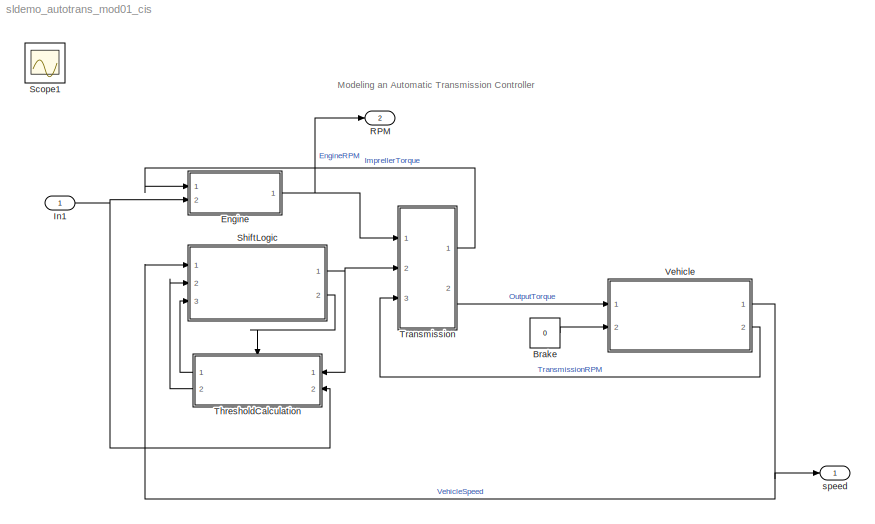
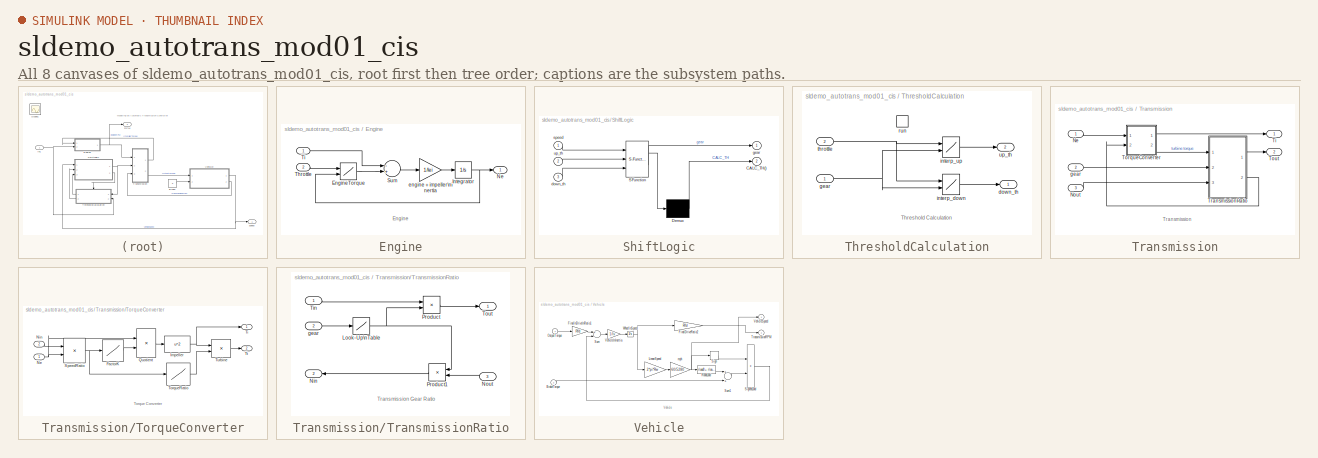
[diagram: thumbnail index - all 8 canvases of the model, root first then tree order]
MODEL sldemo_autotrans_mod01_cis
KIND model
WORKSPACE source: MATLAB code (in-file)
WORKSPACE code: load sldemo_autotrans_data; %load initial conditions and other necessary data
BLOCK [Constant] Brake
  SID = 83
  Value = 0
BLOCK [SubSystem] Engine
  Ports = [2, 1]
  RequestExecContextInheritance = off
  SID = 1
BLOCK [Lookup2D] Engine/EngineTorque
  ColumnIndex = nevec
  RowIndex = thvec
  SID = 4
  SaturateOnIntegerOverflow = off
  Table = emap
BLOCK [Integrator] Engine/Integrator
  InitialCondition = 1000
  LimitOutput = on
  LowerSaturationLimit = 600
  Ports = [1, 1]
  SID = 5
  UpperSaturationLimit = 6000
  ZeroCross = off
BLOCK [Outport] Engine/Ne
  IconDisplay = Port number
  InitialOutput = 0
  SID = 8
BLOCK [Sum] Engine/Sum
  Inputs = -+
  Ports = [2, 1]
  SID = 6
BLOCK [Inport] Engine/Throttle
  IconDisplay = Port number
  Port = 2
  SID = 3
BLOCK [Inport] Engine/Ti
  IconDisplay = Port number
  SID = 2
BLOCK [Gain] Engine/engine + impeller\ninertia
  Gain = 1/Iei
  SID = 7
BLOCK [Inport] In1
  IconDisplay = Port number
  SID = 84
BLOCK [Outport] RPM
  IconDisplay = Port number
  Port = 2
  SID = 79
BLOCK [Scope] Scope1
  Floating = off
  IOType = viewer
  MaxDataPoints = 7500
  NumInputPorts = 1
  Ports = []
  SID = 67
  SampleTime = 0
  TimeRange = 30
  YMax = 5000
  YMin = 1000
BLOCK [SubSystem] ShiftLogic
  ErrorFcn = Stateflow.Translate.translate
  PermitHierarchicalResolution = ExplicitOnly
  Ports = [3, 2]
  RequestExecContextInheritance = off
  SFBlockType = Chart
  SID = 16
  TreatAsAtomicUnit = on
BLOCK [Demux] ShiftLogic/ Demux 
  Outputs = 1
  Ports = [1, 1]
  SID = 16::19
BLOCK [S-Function] ShiftLogic/ SFunction 
  EnableBusSupport = on
  FunctionName = sf_sfun
  Parameters = TWAIT
  PortCounts = [3 2]
  Ports = [3, 2]
  SID = 16::18
  Tag = Stateflow S-Function sldemo_autotrans_mod01_cis 1
BLOCK [Outport] ShiftLogic/CALC_TH()
  IconDisplay = Port number
  Port = 2
  SID = 16::7
BLOCK [Inport] ShiftLogic/down_th
  IconDisplay = Port number
  Port = 3
  SID = 16::3
BLOCK [Outport] ShiftLogic/gear
  IconDisplay = Port number
  SID = 16::6
BLOCK [Inport] ShiftLogic/speed
  IconDisplay = Port number
  SID = 16::1
BLOCK [Inport] ShiftLogic/up_th
  IconDisplay = Port number
  Port = 2
  SID = 16::2
BLOCK [SubSystem] ThresholdCalculation
  Ports = [2, 2, 0, 1]
  RequestExecContextInheritance = off
  SID = 17
  TreatAsAtomicUnit = on
BLOCK [Outport] ThresholdCalculation/down_th
  IconDisplay = Port number
  SID = 23
BLOCK [Inport] ThresholdCalculation/gear
  IconDisplay = Port number
  SID = 18
BLOCK [Lookup2D] ThresholdCalculation/interp_down
  ColumnIndex = [1:4]
  InputSameDT = off
  LockScale = on
  OutDataTypeStr = double
  RowIndex = downth
  SID = 21
  SaturateOnIntegerOverflow = off
  Table = downtab
BLOCK [Lookup2D] ThresholdCalculation/interp_up
  ColumnIndex = [1:4]
  InputSameDT = off
  LockScale = on
  OutDataTypeStr = double
  RowIndex = upth
  SID = 22
  SaturateOnIntegerOverflow = off
  Table = uptab
BLOCK [TriggerPort] ThresholdCalculation/run
  Ports = []
  SID = 20
  TriggerType = function-call
  ZeroCross = off
BLOCK [Inport] ThresholdCalculation/throttle
  IconDisplay = Port number
  Port = 2
  SID = 19
BLOCK [Outport] ThresholdCalculation/up_th
  IconDisplay = Port number
  Port = 2
  SID = 24
BLOCK [SubSystem] Transmission
  Ports = [3, 2]
  RequestExecContextInheritance = off
  SID = 25
BLOCK [Inport] Transmission/Ne
  IconDisplay = Port number
  SID = 26
BLOCK [Inport] Transmission/Nout
  IconDisplay = Port number
  Port = 3
  SID = 28
BLOCK [Outport] Transmission/Ti
  IconDisplay = Port number
  InitialOutput = 0
  SID = 49
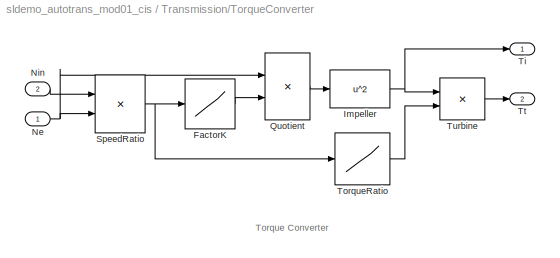
BLOCK [SubSystem] Transmission/TorqueConverter
  Ports = [2, 2]
  RequestExecContextInheritance = off
  SID = 29
  ShowPortLabels = none
BLOCK [Lookup] Transmission/TorqueConverter/FactorK
  InputValues = speedratio
  SID = 32
  Table = Kfactor
BLOCK [Fcn] Transmission/TorqueConverter/Impeller
  Expr = u^2
  SID = 33
BLOCK [Inport] Transmission/TorqueConverter/Ne
  IconDisplay = Port number
  SID = 30
BLOCK [Inport] Transmission/TorqueConverter/Nin
  IconDisplay = Port number
  Port = 2
  SID = 31
BLOCK [Product] Transmission/TorqueConverter/Quotient
  Inputs = */
  Ports = [2, 1]
  RndMeth = Floor
  SID = 34
BLOCK [Product] Transmission/TorqueConverter/SpeedRatio
  Inputs = */
  Ports = [2, 1]
  RndMeth = Floor
  SID = 35
BLOCK [Outport] Transmission/TorqueConverter/Ti
  IconDisplay = Port number
  InitialOutput = 0
  SID = 38
BLOCK [Lookup] Transmission/TorqueConverter/TorqueRatio
  InputValues = speedratio
  SID = 36
  Table = Torkratio
BLOCK [Outport] Transmission/TorqueConverter/Tt
  IconDisplay = Port number
  InitialOutput = 0
  Port = 2
  SID = 39
BLOCK [Product] Transmission/TorqueConverter/Turbine
  Ports = [2, 1]
  RndMeth = Floor
  SID = 37
BLOCK [Outport] Transmission/Tout
  IconDisplay = Port number
  InitialOutput = 0
  Port = 2
  SID = 50
BLOCK [SubSystem] Transmission/TransmissionRatio
  Ports = [3, 2]
  RequestExecContextInheritance = off
  SID = 40
BLOCK [Lookup] Transmission/TransmissionRatio/Look-Up\nTable
  InputValues = [1 2 3 4]
  LockScale = on
  OutDataTypeStr = double
  SID = 44
  Table = [2.393 1.450 1.000 0.677]
BLOCK [Outport] Transmission/TransmissionRatio/Nin
  IconDisplay = Port number
  InitialOutput = 0
  Port = 2
  SID = 48
BLOCK [Inport] Transmission/TransmissionRatio/Nout
  IconDisplay = Port number
  Port = 3
  SID = 43
BLOCK [Product] Transmission/TransmissionRatio/Product
  Ports = [2, 1]
  RndMeth = Floor
  SID = 45
BLOCK [Product] Transmission/TransmissionRatio/Product1
  Ports = [2, 1]
  RndMeth = Floor
  SID = 46
BLOCK [Inport] Transmission/TransmissionRatio/Tin
  IconDisplay = Port number
  SID = 41
BLOCK [Outport] Transmission/TransmissionRatio/Tout
  IconDisplay = Port number
  InitialOutput = 0
  SID = 47
BLOCK [Inport] Transmission/TransmissionRatio/gear
  IconDisplay = Port number
  Port = 2
  SID = 42
BLOCK [Inport] Transmission/gear
  IconDisplay = Port number
  Port = 2
  SID = 27
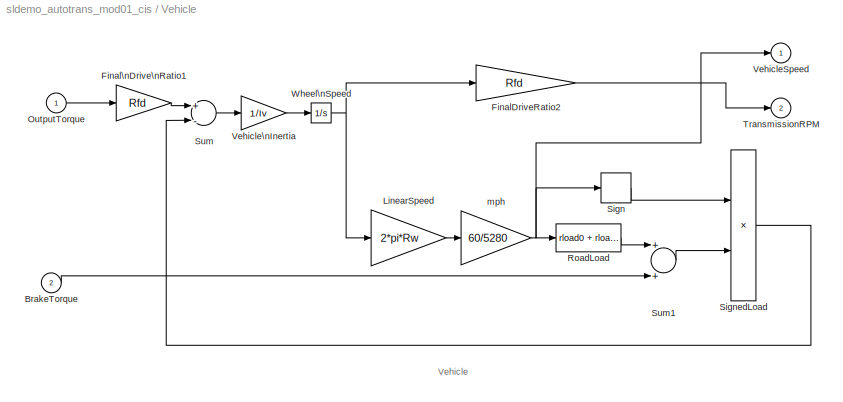
BLOCK [SubSystem] Vehicle
  Ports = [2, 2]
  RequestExecContextInheritance = off
  SID = 51
  ShowPortLabels = none
BLOCK [Inport] Vehicle/BrakeTorque
  IconDisplay = Port number
  Port = 2
  SID = 53
BLOCK [Gain] Vehicle/FinalDriveRatio2
  Gain = Rfd
  SID = 55
BLOCK [Gain] Vehicle/Final\nDrive\nRatio1
  Gain = Rfd
  SID = 54
BLOCK [Gain] Vehicle/LinearSpeed
  Gain = 2*pi*Rw
  SID = 56
BLOCK [Inport] Vehicle/OutputTorque
  IconDisplay = Port number
  SID = 52
BLOCK [Fcn] Vehicle/RoadLoad
  Expr = rload0 + rload2*u^2
  SID = 57
BLOCK [Signum] Vehicle/Sign
  SID = 58
BLOCK [Product] Vehicle/SignedLoad
  Ports = [2, 1]
  RndMeth = Floor
  SID = 59
BLOCK [Sum] Vehicle/Sum
  Inputs = +-
  Ports = [2, 1]
  SID = 60
BLOCK [Sum] Vehicle/Sum1
  Ports = [2, 1]
  SID = 61
BLOCK [Outport] Vehicle/TransmissionRPM
  IconDisplay = Port number
  InitialOutput = 0
  Port = 2
  SID = 66
BLOCK [Outport] Vehicle/VehicleSpeed
  IconDisplay = Port number
  InitialOutput = 0
  SID = 65
BLOCK [Gain] Vehicle/Vehicle\nInertia
  Gain = 1/Iv
  SID = 62
BLOCK [Integrator] Vehicle/Wheel\nSpeed
  InitialCondition = N20/Rfd
  Ports = [1, 1]
  SID = 63
  ZeroCross = off
BLOCK [Gain] Vehicle/mph
  Gain = 60/5280
  SID = 64
BLOCK [Outport] speed
  IconDisplay = Port number
  SID = 80
ANNOTATION (root): Modeling an Automatic Transmission Controller
ANNOTATION Engine: Engine
ANNOTATION ThresholdCalculation: Threshold Calculation
ANNOTATION Transmission: Transmission
ANNOTATION Transmission/TorqueConverter: Torque Converter
ANNOTATION Transmission/TransmissionRatio: Transmission Gear Ratio
ANNOTATION Vehicle: Vehicle
LINE Brake:1 -> Vehicle:2
LINE Engine/EngineTorque:1 -> Engine/Sum:2
NET Engine/Integrator:1 -> Engine/EngineTorque:2, Engine/Ne:1
LINE Engine/Sum:1 -> Engine/engine + impeller\ninertia:1
LINE Engine/Throttle:1 -> Engine/EngineTorque:1
LINE Engine/Ti:1 -> Engine/Sum:1
LINE Engine/engine + impeller\ninertia:1 -> Engine/Integrator:1
NET Engine:1 -> RPM:1, Transmission:1
NET In1:1 -> Engine:2, ThresholdCalculation:2
LINE ShiftLogic/ Demux :1 -> ShiftLogic/CALC_TH():1
LINE ShiftLogic/ SFunction :1 -> ShiftLogic/ Demux :1
LINE ShiftLogic/ SFunction :2 -> ShiftLogic/gear:1
LINE ShiftLogic/down_th:1 -> ShiftLogic/ SFunction :3
LINE ShiftLogic/speed:1 -> ShiftLogic/ SFunction :1
LINE ShiftLogic/up_th:1 -> ShiftLogic/ SFunction :2
NET ShiftLogic:1 -> ThresholdCalculation:1, Transmission:2
LINE ShiftLogic:2 -> ThresholdCalculation:trigger
NET ThresholdCalculation/gear:1 -> ThresholdCalculation/interp_down:2, ThresholdCalculation/interp_up:2
LINE ThresholdCalculation/interp_down:1 -> ThresholdCalculation/down_th:1
LINE ThresholdCalculation/interp_up:1 -> ThresholdCalculation/up_th:1
NET ThresholdCalculation/throttle:1 -> ThresholdCalculation/interp_down:1, ThresholdCalculation/interp_up:1
LINE ThresholdCalculation:1 -> ShiftLogic:3
LINE ThresholdCalculation:2 -> ShiftLogic:2
LINE Transmission/Ne:1 -> Transmission/TorqueConverter:1
LINE Transmission/Nout:1 -> Transmission/TransmissionRatio:3
LINE Transmission/TorqueConverter/FactorK:1 -> Transmission/TorqueConverter/Quotient:2
NET Transmission/TorqueConverter/Impeller:1 -> Transmission/TorqueConverter/Ti:1, Transmission/TorqueConverter/Turbine:1
NET Transmission/TorqueConverter/Ne:1 -> Transmission/TorqueConverter/Quotient:1, Transmission/TorqueConverter/SpeedRatio:2
LINE Transmission/TorqueConverter/Nin:1 -> Transmission/TorqueConverter/SpeedRatio:1
LINE Transmission/TorqueConverter/Quotient:1 -> Transmission/TorqueConverter/Impeller:1
NET Transmission/TorqueConverter/SpeedRatio:1 -> Transmission/TorqueConverter/FactorK:1, Transmission/TorqueConverter/TorqueRatio:1
LINE Transmission/TorqueConverter/TorqueRatio:1 -> Transmission/TorqueConverter/Turbine:2
LINE Transmission/TorqueConverter/Turbine:1 -> Transmission/TorqueConverter/Tt:1
LINE Transmission/TorqueConverter:1 -> Transmission/Ti:1
LINE Transmission/TorqueConverter:2 -> Transmission/TransmissionRatio:1
NET Transmission/TransmissionRatio/Look-Up\nTable:1 -> Transmission/TransmissionRatio/Product1:1, Transmission/TransmissionRatio/Product:2
LINE Transmission/TransmissionRatio/Nout:1 -> Transmission/TransmissionRatio/Product1:2
LINE Transmission/TransmissionRatio/Product1:1 -> Transmission/TransmissionRatio/Nin:1
LINE Transmission/TransmissionRatio/Product:1 -> Transmission/TransmissionRatio/Tout:1
LINE Transmission/TransmissionRatio/Tin:1 -> Transmission/TransmissionRatio/Product:1
LINE Transmission/TransmissionRatio/gear:1 -> Transmission/TransmissionRatio/Look-Up\nTable:1
LINE Transmission/TransmissionRatio:1 -> Transmission/Tout:1
LINE Transmission/TransmissionRatio:2 -> Transmission/TorqueConverter:2
LINE Transmission/gear:1 -> Transmission/TransmissionRatio:2
LINE Transmission:1 -> Engine:1
LINE Transmission:2 -> Vehicle:1
LINE Vehicle/BrakeTorque:1 -> Vehicle/Sum1:2
LINE Vehicle/FinalDriveRatio2:1 -> Vehicle/TransmissionRPM:1
LINE Vehicle/Final\nDrive\nRatio1:1 -> Vehicle/Sum:1
LINE Vehicle/LinearSpeed:1 -> Vehicle/mph:1
LINE Vehicle/OutputTorque:1 -> Vehicle/Final\nDrive\nRatio1:1
LINE Vehicle/RoadLoad:1 -> Vehicle/Sum1:1
LINE Vehicle/Sign:1 -> Vehicle/SignedLoad:1
LINE Vehicle/SignedLoad:1 -> Vehicle/Sum:2
LINE Vehicle/Sum1:1 -> Vehicle/SignedLoad:2
LINE Vehicle/Sum:1 -> Vehicle/Vehicle\nInertia:1
LINE Vehicle/Vehicle\nInertia:1 -> Vehicle/Wheel\nSpeed:1
NET Vehicle/Wheel\nSpeed:1 -> Vehicle/FinalDriveRatio2:1, Vehicle/LinearSpeed:1
NET Vehicle/mph:1 -> Vehicle/RoadLoad:1, Vehicle/Sign:1, Vehicle/VehicleSpeed:1
NET Vehicle:1 -> ShiftLogic:1, speed:1
LINE Vehicle:2 -> Transmission:3
note: NET lines group one-source signal fan-out (src -> all destinations, sorted); 1:1 wires keep LINE
CHART ShiftLogic states=9 transitions=14
  STATE_LABEL 'downshifting'
  STATE_LABEL 'gear_state'
  STATE_LABEL 'fourth\\nentry:\\ngear = 4;'
  STATE_LABEL 'second\\nentry:\\ngear = 2;'
  STATE_LABEL 'third\\nentry:\\ngear = 3;'
  STATE_LABEL 'first\\nentry:\\ngear = 1;'
  STATE_LABEL 'selection_state\\nduring: CALC_TH;'
  STATE_LABEL 'upshifting'
  STATE_LABEL 'steady_state'
